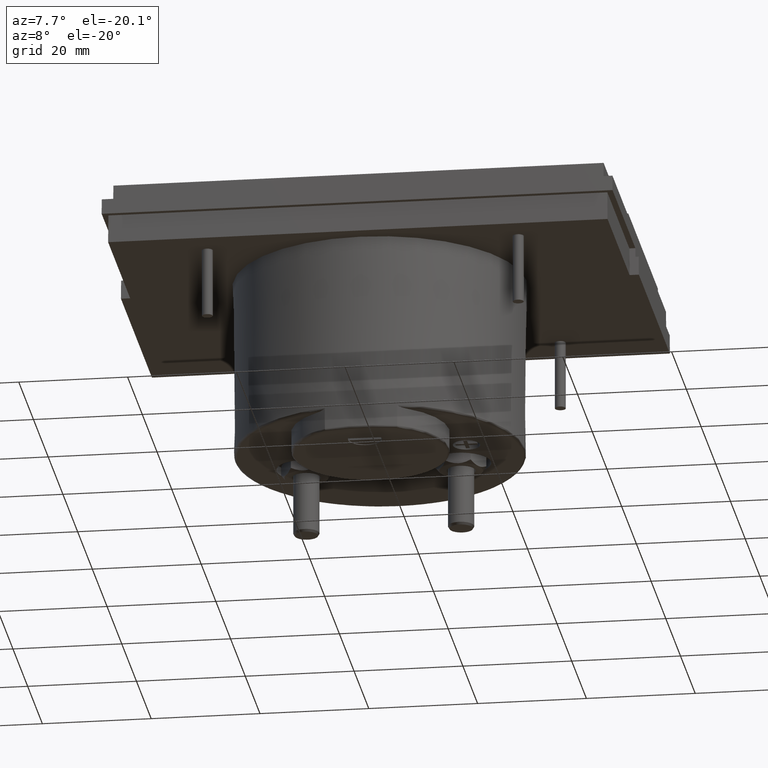
[diagram: clean part render]
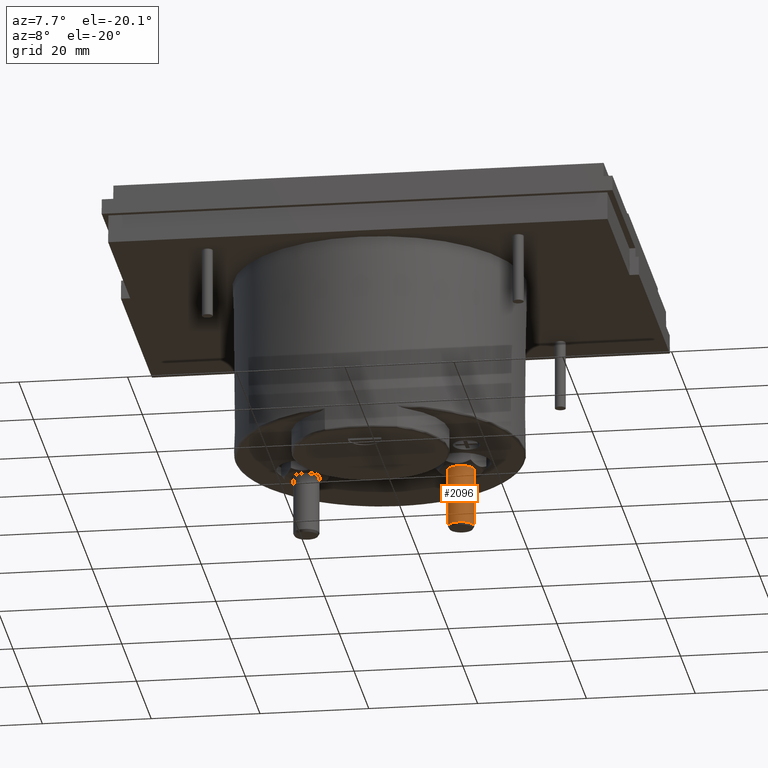
[diagram: same view with one face highlighted and labeled with its STEP entity id]
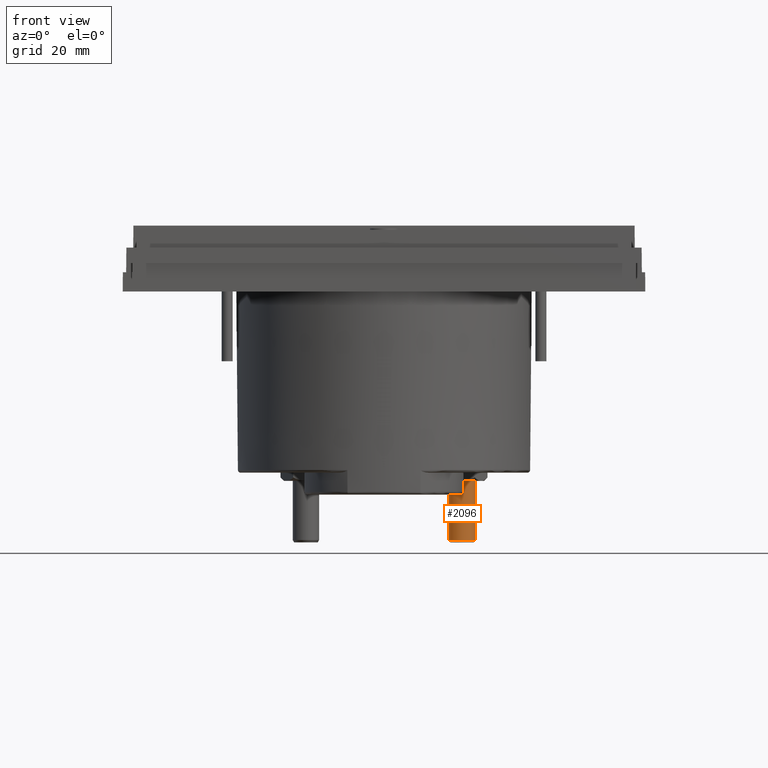
[diagram: same view with one face highlighted and labeled with its STEP entity id]
A machine part, auxiliary view. The second image highlights one B-rep face of the part: STEP entity #2096.
A second angle (front view) of the same face is appended — the face is thin or edge-on in the first view.
In plain terms, the highlighted cylindrical surface (edge-blend (fillet) strip) has radius 2.4 mm, axis along (0, 0, -1).
Its self-contained STEP definition (entity closure, byte-faithful):
#87 = VERTEX_POINT ( 'NONE', #1604 ) ;
#291 = DIRECTION ( 'NONE',  ( 0.000000000000000000, 0.000000000000000000, -1.000000000000000000 ) ) ;
#308 = CARTESIAN_POINT ( 'NONE',  ( 1.130866141732283392, 0.5150293017077677282, -1.614842019610543300 ) ) ;
#444 = CARTESIAN_POINT ( 'NONE',  ( 1.036377952768944954, 0.5150293017077677282, -1.614842019610543300 ) ) ;
#538 = ORIENTED_EDGE ( 'NONE', *, *, #2333, .T. ) ;
#556 = EDGE_LOOP ( 'NONE', ( #5110, #610, #925, #538 ) ) ;
#610 = ORIENTED_EDGE ( 'NONE', *, *, #1687, .T. ) ;
#672 = LINE ( 'NONE', #2266, #1285 ) ;
#776 = DIRECTION ( 'NONE',  ( -0.000000000000000000, -0.000000000000000000, 1.000000000000000000 ) ) ;
#925 = ORIENTED_EDGE ( 'NONE', *, *, #4032, .T. ) ;
#976 = CARTESIAN_POINT ( 'NONE',  ( 1.225354330708661399, 0.5150293017077677282, -0.9507874015748031260 ) ) ;
#1033 = AXIS2_PLACEMENT_3D ( 'NONE', #308, #776, #4714 ) ;
#1285 = VECTOR ( 'NONE', #3569, 39.37007874015748143 ) ;
#1551 = DIRECTION ( 'NONE',  ( 0.000000000000000000, 0.000000000000000000, -1.000000000000000000 ) ) ;
#1604 = CARTESIAN_POINT ( 'NONE',  ( 1.225354330718075868, 0.5150293017077677282, -1.181102362196936539 ) ) ;
#1687 = EDGE_CURVE ( 'NONE', #87, #4207, #4182, .T. ) ;
#2096 = ADVANCED_FACE ( 'NONE', ( #4017 ), #3602, .T. ) ;
#2189 = CARTESIAN_POINT ( 'NONE',  ( 1.225354330695622052, 0.5150293017077677282, -1.614842019610543300 ) ) ;
#2266 = CARTESIAN_POINT ( 'NONE',  ( 1.036377952755905607, 0.5150293017077677282, -0.9507874015748031260 ) ) ;
#2333 = EDGE_CURVE ( 'NONE', #3255, #2568, #4603, .T. ) ;
#2400 = DIRECTION ( 'NONE',  ( 0.000000000000000000, 0.000000000000000000, -1.000000000000000000 ) ) ;
#2445 = CARTESIAN_POINT ( 'NONE',  ( 1.036377952746491138, 0.5150293017077677282, -1.181102362196936539 ) ) ;
#2568 = VERTEX_POINT ( 'NONE', #2189 ) ;
#2905 = CARTESIAN_POINT ( 'NONE',  ( 1.130866141732283392, 0.5150293017077677282, -0.9507874015748031260 ) ) ;
#3193 = CARTESIAN_POINT ( 'NONE',  ( 1.130866141732283392, 0.5150293017077677282, -1.181102362196936539 ) ) ;
#3255 = VERTEX_POINT ( 'NONE', #444 ) ;
#3363 = AXIS2_PLACEMENT_3D ( 'NONE', #2905, #2400, #4088 ) ;
#3512 = DIRECTION ( 'NONE',  ( -1.000000000000000000, 0.000000000000000000, 0.000000000000000000 ) ) ;
#3569 = DIRECTION ( 'NONE',  ( 0.000000000000000000, 0.000000000000000000, -1.000000000000000000 ) ) ;
#3602 = CYLINDRICAL_SURFACE ( 'NONE', #3363, 0.09448818897637792369 ) ;
#3851 = VECTOR ( 'NONE', #291, 39.37007874015748143 ) ;
#4017 = FACE_OUTER_BOUND ( 'NONE', #556, .T. ) ;
#4032 = EDGE_CURVE ( 'NONE', #4207, #3255, #672, .T. ) ;
#4088 = DIRECTION ( 'NONE',  ( -1.000000000000000000, 0.000000000000000000, 0.000000000000000000 ) ) ;
#4182 = CIRCLE ( 'NONE', #4679, 0.09448818898579242065 ) ;
#4207 = VERTEX_POINT ( 'NONE', #2445 ) ;
#4232 = LINE ( 'NONE', #976, #3851 ) ;
#4601 = EDGE_CURVE ( 'NONE', #87, #2568, #4232, .T. ) ;
#4603 = CIRCLE ( 'NONE', #1033, 0.09448818897637792369 ) ;
#4679 = AXIS2_PLACEMENT_3D ( 'NONE', #3193, #1551, #3512 ) ;
#4714 = DIRECTION ( 'NONE',  ( -1.000000000000000000, 0.000000000000000000, 0.000000000000000000 ) ) ;
#5110 = ORIENTED_EDGE ( 'NONE', *, *, #4601, .F. ) ;